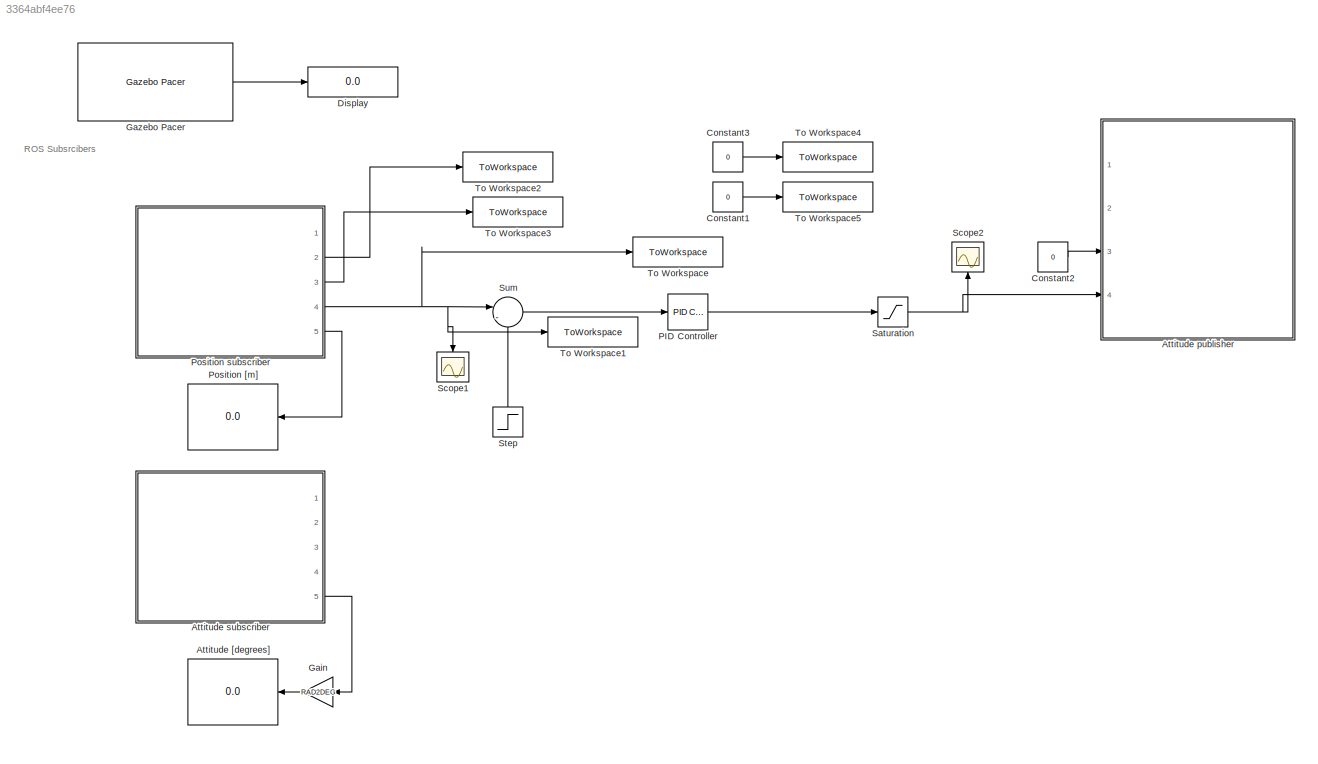
MODEL slx_3364abf4ee76
KIND model
CONFIG AbsTol = auto
CONFIG EnableMultiTasking = off
CONFIG FixedStep = FIXED_STEP_SIZE
CONFIG MaxStep = auto
CONFIG MinStep = auto
CONFIG RelTol = 1e-3
CONFIG SampleTimeConstraint = Unconstrained
CONFIG Solver = FixedStepAuto
CONFIG SolverName = FixedStepAuto
CONFIG StartTime = 0.0
CONFIG StopTime = 7
WORKSPACE source: mxarray member
WORKSPACE K_ip = 0
WORKSPACE K_pp = 3
BLOCK [Display] Attitude [degrees]
  Decimation = 1
  Ports = [1]
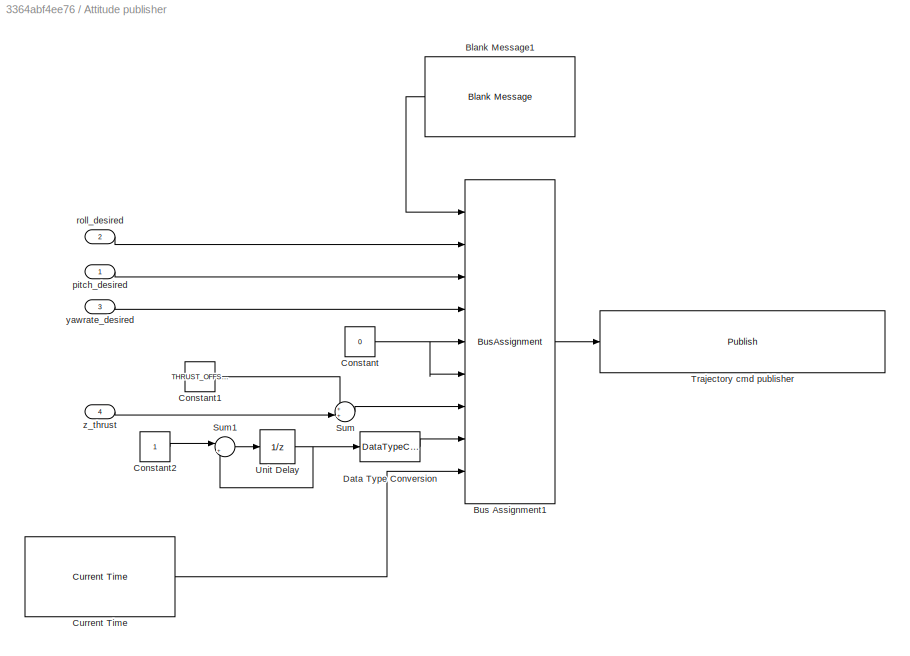
BLOCK [SubSystem] Attitude publisher
  Ports = [4]
  RequestExecContextInheritance = off
BLOCK [Reference] Attitude publisher/Blank Message1  REF=robotlib/Blank Message
  Ports = [0, 1]
  SourceBlock = robotlib/Blank Message
  SourceProductBaseCode = RR
  SourceProductName = ROS Toolbox
  SourceType = ROS Blank Message
BLOCK [BusAssignment] Attitude publisher/Bus Assignment1
  AssignedSignals = Roll,Pitch,YawRate,Thrust.X,Thrust.Y,Thrust.Z,Header.Seq,Header.Stamp
  Ports = [9, 1]
BLOCK [Constant] Attitude publisher/Constant
  Value = 0
BLOCK [Constant] Attitude publisher/Constant1
  Value = THRUST_OFFSET
BLOCK [Constant] Attitude publisher/Constant2
BLOCK [Reference] Attitude publisher/Current Time  REF=robotlib/Current Time
  Ports = [0, 1]
  SourceBlock = robotlib/Current Time
  SourceProductBaseCode = RR
  SourceProductName = ROS Toolbox
  SourceType = ros.slros.internal.block.CurrentTime
BLOCK [DataTypeConversion] Attitude publisher/Data Type Conversion
  OutDataTypeStr = uint32
  RndMeth = Floor
  SaturateOnIntegerOverflow = off
BLOCK [Sum] Attitude publisher/Sum
  IconShape = round
  InputSameDT = off
  Inputs = ++|
  OutDataTypeStr = Inherit: Inherit via internal rule
  Ports = [2, 1]
  SaturateOnIntegerOverflow = off
BLOCK [Sum] Attitude publisher/Sum1
  IconShape = round
  InputSameDT = off
  Inputs = |++
  OutDataTypeStr = Inherit: Inherit via internal rule
  Ports = [2, 1]
  SaturateOnIntegerOverflow = off
BLOCK [Reference] Attitude publisher/Trajectory cmd publisher  REF=robotlib/Publish
  Ports = [1]
  SourceBlock = robotlib/Publish
  SourceProductBaseCode = RR
  SourceProductName = ROS Toolbox
  SourceType = ROS Publish
BLOCK [UnitDelay] Attitude publisher/Unit Delay
  HasFrameUpgradeWarning = on
  SampleTime = FIXED_STEP_SIZE
BLOCK [Inport] Attitude publisher/pitch_desired
  IconDisplay = Port number
BLOCK [Inport] Attitude publisher/roll_desired
  IconDisplay = Port number
  Port = 2
BLOCK [Inport] Attitude publisher/yawrate_desired
  IconDisplay = Port number
  Port = 3
BLOCK [Inport] Attitude publisher/z_thrust
  IconDisplay = Port number
  Port = 4
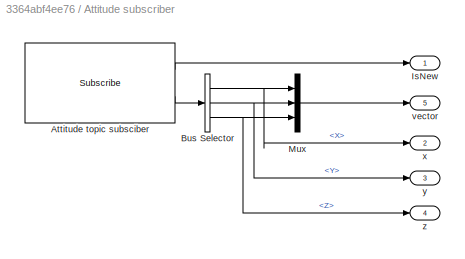
BLOCK [SubSystem] Attitude subscriber
  Ports = [0, 5]
  RequestExecContextInheritance = off
BLOCK [Reference] Attitude subscriber/Attitude topic subsciber  REF=robotlib/Subscribe
  Ports = [0, 2]
  SourceBlock = robotlib/Subscribe
  SourceProductBaseCode = RR
  SourceProductName = ROS Toolbox
  SourceType = ROS Subscribe
BLOCK [BusSelector] Attitude subscriber/Bus Selector
  OutputAsBus = off
  OutputSignals = X,Y,Z
  Ports = [1, 3]
BLOCK [Outport] Attitude subscriber/IsNew
  IconDisplay = Port number
BLOCK [Mux] Attitude subscriber/Mux
  DisplayOption = bar
  Inputs = 3
  Ports = [3, 1]
BLOCK [Outport] Attitude subscriber/vector
  IconDisplay = Port number
  Port = 5
BLOCK [Outport] Attitude subscriber/x
  IconDisplay = Port number
  Port = 2
BLOCK [Outport] Attitude subscriber/y
  IconDisplay = Port number
  Port = 3
BLOCK [Outport] Attitude subscriber/z
  IconDisplay = Port number
  Port = 4
BLOCK [Constant] Constant1
  Value = 0
BLOCK [Constant] Constant2
  Value = 0
BLOCK [Constant] Constant3
  Value = 0
BLOCK [Display] Display
  Decimation = 1
  Ports = [1]
BLOCK [Gain] Gain
  Gain = RAD2DEG
  OutDataTypeStr = Inherit: Inherit via internal rule
  ParamDataTypeStr = Inherit: Inherit via internal rule
  SaturateOnIntegerOverflow = off
BLOCK [Reference] Gazebo Pacer  REF=robotgazebolib/Gazebo Pacer
  Ports = [0, 1]
  SourceBlock = robotgazebolib/Gazebo Pacer
  SourceProductBaseCode = RO
  SourceProductName = Robotics System Toolbox
  SourceType = Gazebo Pacer
BLOCK [Reference] PID Controller  REF=simulink/Continuous/PID Controller
  Ports = [1, 1]
  SourceBlock = simulink/Continuous/PID Controller
  SourceProductBaseCode = SL
  SourceProductName = Simulink
  SourceType = PID 1dof
BLOCK [Display] Position [m]
  Decimation = 1
  Ports = [1]
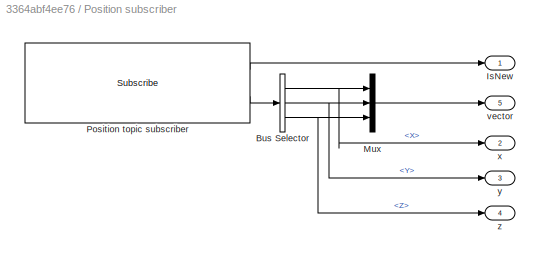
BLOCK [SubSystem] Position subscriber
  Ports = [0, 5]
  RequestExecContextInheritance = off
BLOCK [BusSelector] Position subscriber/Bus Selector
  OutputAsBus = off
  OutputSignals = Point.X,Point.Y,Point.Z
  Ports = [1, 3]
BLOCK [Outport] Position subscriber/IsNew
  IconDisplay = Port number
BLOCK [Mux] Position subscriber/Mux
  DisplayOption = bar
  Inputs = 3
  Ports = [3, 1]
BLOCK [Reference] Position subscriber/Position topic subscriber  REF=robotlib/Subscribe
  Ports = [0, 2]
  SourceBlock = robotlib/Subscribe
  SourceProductBaseCode = RR
  SourceProductName = ROS Toolbox
  SourceType = ROS Subscribe
BLOCK [Outport] Position subscriber/vector
  IconDisplay = Port number
  Port = 5
BLOCK [Outport] Position subscriber/x
  IconDisplay = Port number
  Port = 2
BLOCK [Outport] Position subscriber/y
  IconDisplay = Port number
  Port = 3
BLOCK [Outport] Position subscriber/z
  IconDisplay = Port number
  Port = 4
BLOCK [Saturate] Saturation
  InputPortMap = u0
  LowerLimit = -15
  Ports = [1, 1]
  UpperLimit = 15
BLOCK [Scope] Scope1
  Floating = off
  NumInputPorts = 1
  Ports = [1]
  ScopeSpecificationString = Simulink.scopes.TimeScopeBlockCfg('CurrentConfiguration', extmgr.ConfigurationSet(extmgr.Configuration('Core','General UI',true),extmgr.Configuration('Core','Source UI',true),extmgr.Configuration('Sources','WiredSimulink',true,'DataLoggingVariableName','ScopeData1'),extmgr.Configuration('Visuals','Time Domain',true,'SerializedDisplays',{struct('MinYLimReal','-0.12506','MaxYLimReal','1.12553','YLab...<+1432ch>
BLOCK [Scope] Scope2
  Floating = off
  NumInputPorts = 1
  Ports = [1]
  ScopeSpecificationString = Simulink.scopes.TimeScopeBlockCfg('CurrentConfiguration', extmgr.ConfigurationSet(extmgr.Configuration('Core','General UI',true),extmgr.Configuration('Core','Source UI',true),extmgr.Configuration('Sources','WiredSimulink',true),extmgr.Configuration('Visuals','Time Domain',true,'SerializedDisplays',{struct('MinYLimReal','-18.75','MaxYLimReal','18.75','YLabelReal','','MinYLimMag','0.00000','MaxYLimM...<+1347ch>
BLOCK [Step] Step
  SampleTime = 0
BLOCK [Sum] Sum
  IconShape = round
  InputSameDT = off
  Inputs = |-+
  OutDataTypeStr = Inherit: Inherit via internal rule
  Ports = [2, 1]
  SaturateOnIntegerOverflow = off
BLOCK [ToWorkspace] To Workspace
  FixptAsFi = on
  MaxDataPoints = inf
  Ports = [1]
  SampleTime = 0.1
  SaveFormat = Timeseries
  VariableName = z_position
BLOCK [ToWorkspace] To Workspace1
  FixptAsFi = on
  MaxDataPoints = inf
  Ports = [1]
  SampleTime = 0.1
  SaveFormat = Timeseries
  VariableName = z_position_des
BLOCK [ToWorkspace] To Workspace2
  FixptAsFi = on
  MaxDataPoints = inf
  Ports = [1]
  SampleTime = 0.1
  SaveFormat = Timeseries
  VariableName = x_position
BLOCK [ToWorkspace] To Workspace3
  FixptAsFi = on
  MaxDataPoints = inf
  Ports = [1]
  SampleTime = 0.1
  SaveFormat = Timeseries
  VariableName = y_position
BLOCK [ToWorkspace] To Workspace4
  FixptAsFi = on
  MaxDataPoints = inf
  Ports = [1]
  SampleTime = 0.1
  SaveFormat = Timeseries
  VariableName = x_position_des
BLOCK [ToWorkspace] To Workspace5
  FixptAsFi = on
  MaxDataPoints = inf
  Ports = [1]
  SampleTime = 0.1
  SaveFormat = Timeseries
  VariableName = y_position_des
ANNOTATION (root): ROS Subsrcibers
LINE Attitude publisher/Blank Message1:1 -> Attitude publisher/Bus Assignment1:1
LINE Attitude publisher/Bus Assignment1:1 -> Attitude publisher/Trajectory cmd publisher:1
LINE Attitude publisher/Constant1:1 -> Attitude publisher/Sum:1
LINE Attitude publisher/Constant2:1 -> Attitude publisher/Sum1:1
NET Attitude publisher/Constant:1 -> Attitude publisher/Bus Assignment1:5, Attitude publisher/Bus Assignment1:6
LINE Attitude publisher/Current Time:1 -> Attitude publisher/Bus Assignment1:9
LINE Attitude publisher/Data Type Conversion:1 -> Attitude publisher/Bus Assignment1:8
LINE Attitude publisher/Sum1:1 -> Attitude publisher/Unit Delay:1
LINE Attitude publisher/Sum:1 -> Attitude publisher/Bus Assignment1:7
NET Attitude publisher/Unit Delay:1 -> Attitude publisher/Data Type Conversion:1, Attitude publisher/Sum1:2
LINE Attitude publisher/pitch_desired:1 -> Attitude publisher/Bus Assignment1:3
LINE Attitude publisher/roll_desired:1 -> Attitude publisher/Bus Assignment1:2
LINE Attitude publisher/yawrate_desired:1 -> Attitude publisher/Bus Assignment1:4
LINE Attitude publisher/z_thrust:1 -> Attitude publisher/Sum:2
LINE Attitude subscriber/Attitude topic subsciber:1 -> Attitude subscriber/IsNew:1
LINE Attitude subscriber/Attitude topic subsciber:2 -> Attitude subscriber/Bus Selector:1
NET Attitude subscriber/Bus Selector:1 -> Attitude subscriber/Mux:1, Attitude subscriber/x:1
NET Attitude subscriber/Bus Selector:2 -> Attitude subscriber/Mux:2, Attitude subscriber/y:1
NET Attitude subscriber/Bus Selector:3 -> Attitude subscriber/Mux:3, Attitude subscriber/z:1
LINE Attitude subscriber/Mux:1 -> Attitude subscriber/vector:1
LINE Attitude subscriber:5 -> Gain:1
LINE Constant1:1 -> To Workspace5:1
LINE Constant2:1 -> Attitude publisher:3
LINE Constant3:1 -> To Workspace4:1
LINE Gain:1 -> Attitude [degrees]:1
LINE Gazebo Pacer:1 -> Display:1
LINE PID Controller:1 -> Saturation:1
NET Position subscriber/Bus Selector:1 -> Position subscriber/Mux:1, Position subscriber/x:1
NET Position subscriber/Bus Selector:2 -> Position subscriber/Mux:2, Position subscriber/y:1
NET Position subscriber/Bus Selector:3 -> Position subscriber/Mux:3, Position subscriber/z:1
LINE Position subscriber/Mux:1 -> Position subscriber/vector:1
LINE Position subscriber/Position topic subscriber:1 -> Position subscriber/IsNew:1
LINE Position subscriber/Position topic subscriber:2 -> Position subscriber/Bus Selector:1
LINE Position subscriber:2 -> To Workspace2:1
LINE Position subscriber:3 -> To Workspace3:1
NET Position subscriber:4 -> Scope1:1, Sum:1, To Workspace1:1, To Workspace:1
LINE Position subscriber:5 -> Position [m]:1
NET Saturation:1 -> Attitude publisher:4, Scope2:1
LINE Step:1 -> Sum:2
LINE Sum:1 -> PID Controller:1
note: NET lines group one-source signal fan-out (src -> all destinations, sorted); 1:1 wires keep LINE
